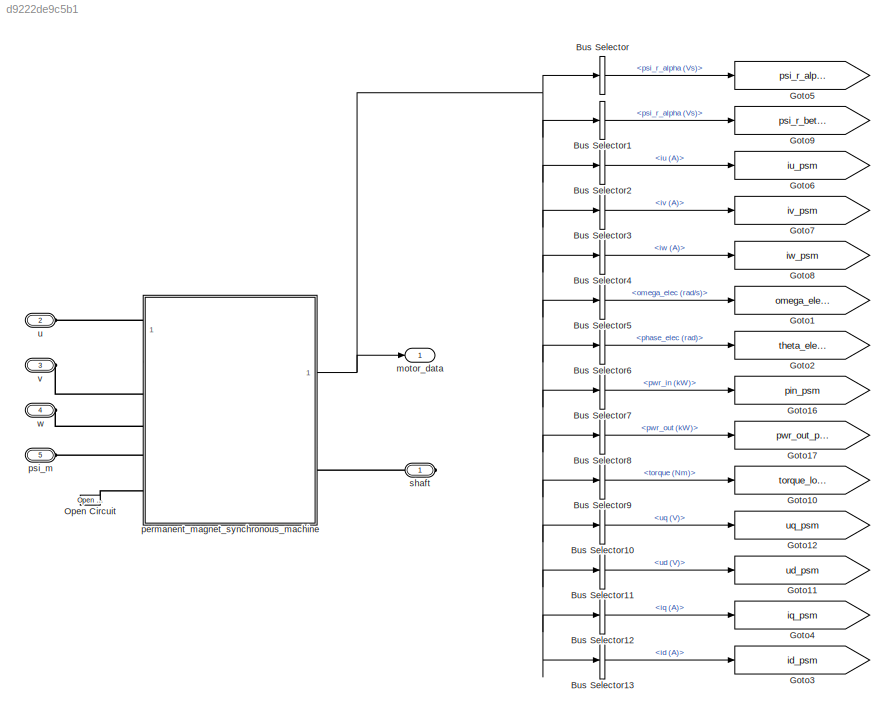
MODEL slx_d9222de9c5b1
KIND library
CONFIG AbsTol = auto
CONFIG EnableMultiTasking = off
CONFIG FixedStep = auto
CONFIG MaxStep = auto
CONFIG MinStep = auto
CONFIG RelTol = 1e-3
CONFIG SampleTimeConstraint = Unconstrained
CONFIG SolverName = VariableStepAuto
CONFIG StartTime = 0.0
CONFIG StopTime = 10.0
BLOCK [BusSelector] Bus Selector
  OutputSignals = psi_r_alpha (Vs)
BLOCK [BusSelector] Bus Selector1
  OutputSignals = psi_r_alpha (Vs)
BLOCK [BusSelector] Bus Selector10
  OutputSignals = uq (V)
BLOCK [BusSelector] Bus Selector11
  OutputSignals = ud (V)
BLOCK [BusSelector] Bus Selector12
  OutputSignals = iq (A)
BLOCK [BusSelector] Bus Selector13
  OutputSignals = id (A)
BLOCK [BusSelector] Bus Selector2
  OutputSignals = iu (A)
BLOCK [BusSelector] Bus Selector3
  OutputSignals = iv (A)
BLOCK [BusSelector] Bus Selector4
  OutputSignals = iw (A)
BLOCK [BusSelector] Bus Selector5
  OutputSignals = omega_elec (rad/s)
BLOCK [BusSelector] Bus Selector6
  OutputSignals = phase_elec (rad)
BLOCK [BusSelector] Bus Selector7
  OutputSignals = pwr_in (kW)
BLOCK [BusSelector] Bus Selector8
  OutputSignals = pwr_out (kW)
BLOCK [BusSelector] Bus Selector9
  OutputSignals = torque (Nm)
BLOCK [Goto] Goto1
  GotoTag = omega_elec_psm
  TagVisibility = global
BLOCK [Goto] Goto10
  GotoTag = torque_load_psm
  TagVisibility = global
BLOCK [Goto] Goto11
  GotoTag = ud_psm
  TagVisibility = global
BLOCK [Goto] Goto12
  GotoTag = uq_psm
  TagVisibility = global
BLOCK [Goto] Goto16
  GotoTag = pin_psm
  TagVisibility = global
BLOCK [Goto] Goto17
  GotoTag = pwr_out_psm
  TagVisibility = global
BLOCK [Goto] Goto2
  GotoTag = theta_elec_psm
  TagVisibility = global
BLOCK [Goto] Goto3
  GotoTag = id_psm
  TagVisibility = global
BLOCK [Goto] Goto4
  GotoTag = iq_psm
  TagVisibility = global
BLOCK [Goto] Goto5
  GotoTag = psi_r_alpha_psm
  TagVisibility = global
BLOCK [Goto] Goto6
  GotoTag = iu_psm
  TagVisibility = global
BLOCK [Goto] Goto7
  GotoTag = iv_psm
  TagVisibility = global
BLOCK [Goto] Goto8
  GotoTag = iw_psm
  TagVisibility = global
BLOCK [Goto] Goto9
  GotoTag = psi_r_beta_psm
  TagVisibility = global
BLOCK [Reference] Open Circuit  REF=fl_lib/Electrical/Electrical Elements/Open Circuit
  SourceBlock = fl_lib/Electrical/Electrical Elements/Open Circuit
  SourceType = Open Circuit
BLOCK [Outport] motor_data
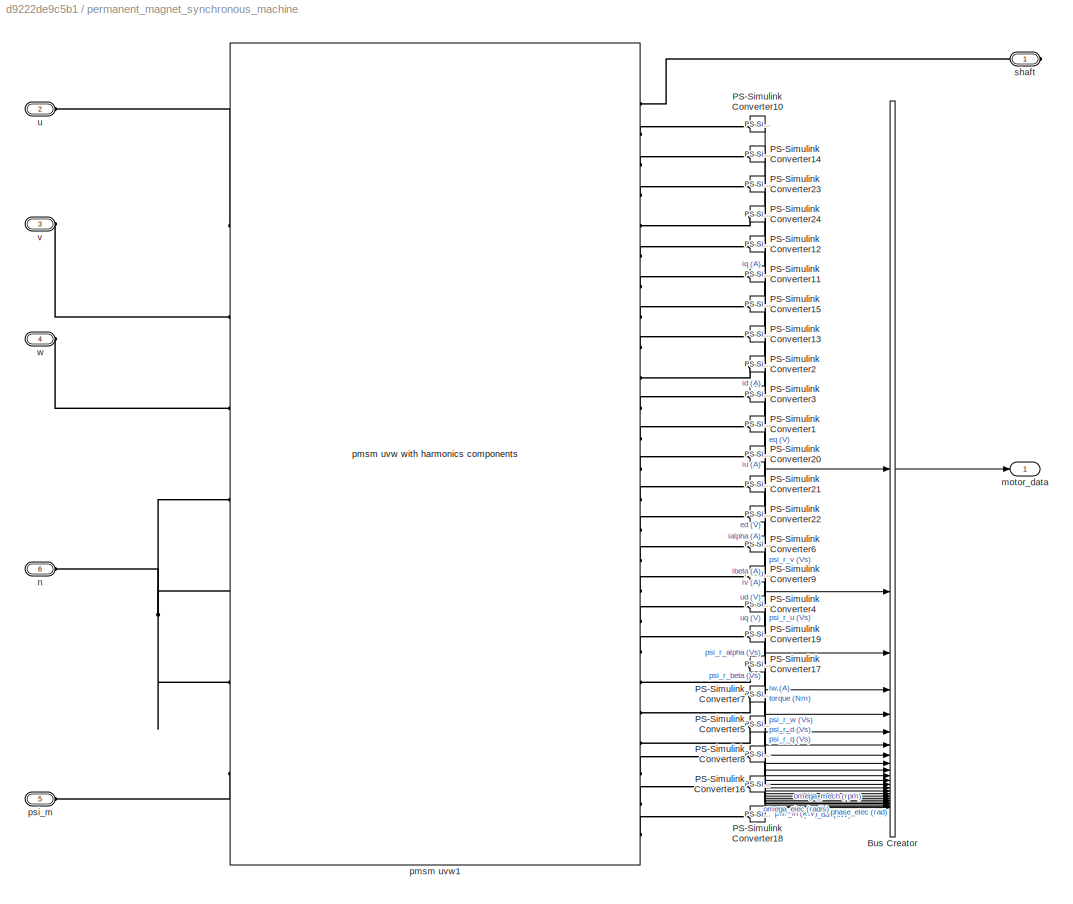
BLOCK [SubSystem] permanent_magnet_synchronous_machine
BLOCK [BusCreator] permanent_magnet_synchronous_machine/Bus Creator
  DisplayOption = bar
  InheritFromInputs = on
  Inputs = 24
BLOCK [Reference] permanent_magnet_synchronous_machine/PS-Simulink Converter1  REF=nesl_utility/PS-Simulink
Converter
  NameLocation = top
  SourceBlock = nesl_utility/PS-Simulink\nConverter
  SourceType = PS-Simulink\nConverter
BLOCK [Reference] permanent_magnet_synchronous_machine/PS-Simulink Converter10  REF=nesl_utility/PS-Simulink
Converter
  SourceBlock = nesl_utility/PS-Simulink\nConverter
  SourceType = PS-Simulink\nConverter
BLOCK [Reference] permanent_magnet_synchronous_machine/PS-Simulink Converter11  REF=nesl_utility/PS-Simulink
Converter
  SourceBlock = nesl_utility/PS-Simulink\nConverter
  SourceType = PS-Simulink\nConverter
BLOCK [Reference] permanent_magnet_synchronous_machine/PS-Simulink Converter12  REF=nesl_utility/PS-Simulink
Converter
  SourceBlock = nesl_utility/PS-Simulink\nConverter
  SourceType = PS-Simulink\nConverter
BLOCK [Reference] permanent_magnet_synchronous_machine/PS-Simulink Converter13  REF=nesl_utility/PS-Simulink
Converter
  SourceBlock = nesl_utility/PS-Simulink\nConverter
  SourceType = PS-Simulink\nConverter
BLOCK [Reference] permanent_magnet_synchronous_machine/PS-Simulink Converter14  REF=nesl_utility/PS-Simulink
Converter
  SourceBlock = nesl_utility/PS-Simulink\nConverter
  SourceType = PS-Simulink\nConverter
BLOCK [Reference] permanent_magnet_synchronous_machine/PS-Simulink Converter15  REF=nesl_utility/PS-Simulink
Converter
  SourceBlock = nesl_utility/PS-Simulink\nConverter
  SourceType = PS-Simulink\nConverter
BLOCK [Reference] permanent_magnet_synchronous_machine/PS-Simulink Converter16  REF=nesl_utility/PS-Simulink
Converter
  NameLocation = top
  SourceBlock = nesl_utility/PS-Simulink\nConverter
  SourceType = PS-Simulink\nConverter
BLOCK [Reference] permanent_magnet_synchronous_machine/PS-Simulink Converter17  REF=nesl_utility/PS-Simulink
Converter
  SourceBlock = nesl_utility/PS-Simulink\nConverter
  SourceType = PS-Simulink\nConverter
BLOCK [Reference] permanent_magnet_synchronous_machine/PS-Simulink Converter18  REF=nesl_utility/PS-Simulink
Converter
  NameLocation = top
  SourceBlock = nesl_utility/PS-Simulink\nConverter
  SourceType = PS-Simulink\nConverter
BLOCK [Reference] permanent_magnet_synchronous_machine/PS-Simulink Converter19  REF=nesl_utility/PS-Simulink
Converter
  NameLocation = top
  SourceBlock = nesl_utility/PS-Simulink\nConverter
  SourceType = PS-Simulink\nConverter
BLOCK [Reference] permanent_magnet_synchronous_machine/PS-Simulink Converter2  REF=nesl_utility/PS-Simulink
Converter
  SourceBlock = nesl_utility/PS-Simulink\nConverter
  SourceType = PS-Simulink\nConverter
BLOCK [Reference] permanent_magnet_synchronous_machine/PS-Simulink Converter20  REF=nesl_utility/PS-Simulink
Converter
  NameLocation = top
  SourceBlock = nesl_utility/PS-Simulink\nConverter
  SourceType = PS-Simulink\nConverter
BLOCK [Reference] permanent_magnet_synchronous_machine/PS-Simulink Converter21  REF=nesl_utility/PS-Simulink
Converter
  NameLocation = top
  SourceBlock = nesl_utility/PS-Simulink\nConverter
  SourceType = PS-Simulink\nConverter
BLOCK [Reference] permanent_magnet_synchronous_machine/PS-Simulink Converter22  REF=nesl_utility/PS-Simulink
Converter
  NameLocation = top
  SourceBlock = nesl_utility/PS-Simulink\nConverter
  SourceType = PS-Simulink\nConverter
BLOCK [Reference] permanent_magnet_synchronous_machine/PS-Simulink Converter23  REF=nesl_utility/PS-Simulink
Converter
  SourceBlock = nesl_utility/PS-Simulink\nConverter
  SourceType = PS-Simulink\nConverter
BLOCK [Reference] permanent_magnet_synchronous_machine/PS-Simulink Converter24  REF=nesl_utility/PS-Simulink
Converter
  SourceBlock = nesl_utility/PS-Simulink\nConverter
  SourceType = PS-Simulink\nConverter
BLOCK [Reference] permanent_magnet_synchronous_machine/PS-Simulink Converter3  REF=nesl_utility/PS-Simulink
Converter
  NameLocation = top
  SourceBlock = nesl_utility/PS-Simulink\nConverter
  SourceType = PS-Simulink\nConverter
BLOCK [Reference] permanent_magnet_synchronous_machine/PS-Simulink Converter4  REF=nesl_utility/PS-Simulink
Converter
  NameLocation = top
  SourceBlock = nesl_utility/PS-Simulink\nConverter
  SourceType = PS-Simulink\nConverter
BLOCK [Reference] permanent_magnet_synchronous_machine/PS-Simulink Converter5  REF=nesl_utility/PS-Simulink
Converter
  SourceBlock = nesl_utility/PS-Simulink\nConverter
  SourceType = PS-Simulink\nConverter
BLOCK [Reference] permanent_magnet_synchronous_machine/PS-Simulink Converter6  REF=nesl_utility/PS-Simulink
Converter
  NameLocation = top
  SourceBlock = nesl_utility/PS-Simulink\nConverter
  SourceType = PS-Simulink\nConverter
BLOCK [Reference] permanent_magnet_synchronous_machine/PS-Simulink Converter7  REF=nesl_utility/PS-Simulink
Converter
  NameLocation = top
  SourceBlock = nesl_utility/PS-Simulink\nConverter
  SourceType = PS-Simulink\nConverter
BLOCK [Reference] permanent_magnet_synchronous_machine/PS-Simulink Converter8  REF=nesl_utility/PS-Simulink
Converter
  NameLocation = top
  SourceBlock = nesl_utility/PS-Simulink\nConverter
  SourceType = PS-Simulink\nConverter
BLOCK [Reference] permanent_magnet_synchronous_machine/PS-Simulink Converter9  REF=nesl_utility/PS-Simulink
Converter
  NameLocation = top
  SourceBlock = nesl_utility/PS-Simulink\nConverter
  SourceType = PS-Simulink\nConverter
BLOCK [Outport] permanent_magnet_synchronous_machine/motor_data
BLOCK [PMIOPort] permanent_magnet_synchronous_machine/n
  Port = 6
  Side = Left
BLOCK [Reference] permanent_magnet_synchronous_machine/pmsm uvw1  REF=pmsm_uvw_with_harmonics_lib/pmsm uvw with
harmonics components
  SourceBlock = pmsm_uvw_with_harmonics_lib/pmsm uvw with\nharmonics components
  SourceType = pmsm uvw with\nharmonics components
BLOCK [PMIOPort] permanent_magnet_synchronous_machine/psi_m
  Port = 5
  Side = Left
BLOCK [PMIOPort] permanent_magnet_synchronous_machine/shaft
  Side = Right
BLOCK [PMIOPort] permanent_magnet_synchronous_machine/u
  Port = 2
  Side = Left
BLOCK [PMIOPort] permanent_magnet_synchronous_machine/v
  Port = 3
  Side = Left
BLOCK [PMIOPort] permanent_magnet_synchronous_machine/w
  Port = 4
  Side = Left
BLOCK [PMIOPort] psi_m
  Port = 5
  Side = Left
BLOCK [PMIOPort] shaft
  Side = Right
BLOCK [PMIOPort] u
  Port = 2
  Side = Left
BLOCK [PMIOPort] v
  Port = 3
  Side = Left
BLOCK [PMIOPort] w
  Port = 4
  Side = Left
LINE Bus Selector10:1 -> Goto12:1
LINE Bus Selector11:1 -> Goto11:1
LINE Bus Selector12:1 -> Goto4:1
LINE Bus Selector13:1 -> Goto3:1
LINE Bus Selector1:1 -> Goto9:1
LINE Bus Selector2:1 -> Goto6:1
LINE Bus Selector3:1 -> Goto7:1
LINE Bus Selector4:1 -> Goto8:1
LINE Bus Selector5:1 -> Goto1:1
LINE Bus Selector6:1 -> Goto2:1
LINE Bus Selector7:1 -> Goto16:1
LINE Bus Selector8:1 -> Goto17:1
LINE Bus Selector9:1 -> Goto10:1
LINE Bus Selector:1 -> Goto5:1
LINE permanent_magnet_synchronous_machine/Bus Creator:1 -> permanent_magnet_synchronous_machine/motor_data:1
LINE permanent_magnet_synchronous_machine/PS-Simulink Converter10:1 -> permanent_magnet_synchronous_machine/Bus Creator:1
LINE permanent_magnet_synchronous_machine/PS-Simulink Converter11:1 -> permanent_magnet_synchronous_machine/Bus Creator:6
LINE permanent_magnet_synchronous_machine/PS-Simulink Converter12:1 -> permanent_magnet_synchronous_machine/Bus Creator:5
LINE permanent_magnet_synchronous_machine/PS-Simulink Converter13:1 -> permanent_magnet_synchronous_machine/Bus Creator:8
LINE permanent_magnet_synchronous_machine/PS-Simulink Converter14:1 -> permanent_magnet_synchronous_machine/Bus Creator:2
LINE permanent_magnet_synchronous_machine/PS-Simulink Converter15:1 -> permanent_magnet_synchronous_machine/Bus Creator:7
LINE permanent_magnet_synchronous_machine/PS-Simulink Converter16:1 -> permanent_magnet_synchronous_machine/Bus Creator:23
LINE permanent_magnet_synchronous_machine/PS-Simulink Converter17:1 -> permanent_magnet_synchronous_machine/Bus Creator:19
LINE permanent_magnet_synchronous_machine/PS-Simulink Converter18:1 -> permanent_magnet_synchronous_machine/Bus Creator:24
LINE permanent_magnet_synchronous_machine/PS-Simulink Converter19:1 -> permanent_magnet_synchronous_machine/Bus Creator:18
LINE permanent_magnet_synchronous_machine/PS-Simulink Converter1:1 -> permanent_magnet_synchronous_machine/Bus Creator:11
LINE permanent_magnet_synchronous_machine/PS-Simulink Converter20:1 -> permanent_magnet_synchronous_machine/Bus Creator:12
LINE permanent_magnet_synchronous_machine/PS-Simulink Converter21:1 -> permanent_magnet_synchronous_machine/Bus Creator:13
LINE permanent_magnet_synchronous_machine/PS-Simulink Converter22:1 -> permanent_magnet_synchronous_machine/Bus Creator:14
LINE permanent_magnet_synchronous_machine/PS-Simulink Converter23:1 -> permanent_magnet_synchronous_machine/Bus Creator:3
LINE permanent_magnet_synchronous_machine/PS-Simulink Converter24:1 -> permanent_magnet_synchronous_machine/Bus Creator:4
LINE permanent_magnet_synchronous_machine/PS-Simulink Converter2:1 -> permanent_magnet_synchronous_machine/Bus Creator:9
LINE permanent_magnet_synchronous_machine/PS-Simulink Converter3:1 -> permanent_magnet_synchronous_machine/Bus Creator:10
LINE permanent_magnet_synchronous_machine/PS-Simulink Converter4:1 -> permanent_magnet_synchronous_machine/Bus Creator:17
LINE permanent_magnet_synchronous_machine/PS-Simulink Converter5:1 -> permanent_magnet_synchronous_machine/Bus Creator:21
LINE permanent_magnet_synchronous_machine/PS-Simulink Converter6:1 -> permanent_magnet_synchronous_machine/Bus Creator:15
LINE permanent_magnet_synchronous_machine/PS-Simulink Converter7:1 -> permanent_magnet_synchronous_machine/Bus Creator:20
LINE permanent_magnet_synchronous_machine/PS-Simulink Converter8:1 -> permanent_magnet_synchronous_machine/Bus Creator:22
LINE permanent_magnet_synchronous_machine/PS-Simulink Converter9:1 -> permanent_magnet_synchronous_machine/Bus Creator:16
NET permanent_magnet_synchronous_machine:1 -> Bus Selector10:1, Bus Selector11:1, Bus Selector12:1, Bus Selector13:1, Bus Selector1:1, Bus Selector2:1, Bus Selector3:1, Bus Selector4:1, Bus Selector5:1, Bus Selector6:1, Bus Selector7:1, Bus Selector8:1, Bus Selector9:1, Bus Selector:1, motor_data:1
PLINE Open Circuit:LConn1 -- permanent_magnet_synchronous_machine:LConn5
PLINE permanent_magnet_synchronous_machine/PS-Simulink Converter10:LConn1 -- permanent_magnet_synchronous_machine/pmsm uvw1:RConn2
PLINE permanent_magnet_synchronous_machine/PS-Simulink Converter11:LConn1 -- permanent_magnet_synchronous_machine/pmsm uvw1:RConn7
PLINE permanent_magnet_synchronous_machine/PS-Simulink Converter12:LConn1 -- permanent_magnet_synchronous_machine/pmsm uvw1:RConn6
PLINE permanent_magnet_synchronous_machine/PS-Simulink Converter13:LConn1 -- permanent_magnet_synchronous_machine/pmsm uvw1:RConn9
PLINE permanent_magnet_synchronous_machine/PS-Simulink Converter14:LConn1 -- permanent_magnet_synchronous_machine/pmsm uvw1:RConn3
PLINE permanent_magnet_synchronous_machine/PS-Simulink Converter15:LConn1 -- permanent_magnet_synchronous_machine/pmsm uvw1:RConn8
PLINE permanent_magnet_synchronous_machine/PS-Simulink Converter16:LConn1 -- permanent_magnet_synchronous_machine/pmsm uvw1:RConn24
PLINE permanent_magnet_synchronous_machine/PS-Simulink Converter17:LConn1 -- permanent_magnet_synchronous_machine/pmsm uvw1:RConn20
PLINE permanent_magnet_synchronous_machine/PS-Simulink Converter18:LConn1 -- permanent_magnet_synchronous_machine/pmsm uvw1:RConn25
PLINE permanent_magnet_synchronous_machine/PS-Simulink Converter19:LConn1 -- permanent_magnet_synchronous_machine/pmsm uvw1:RConn19
PLINE permanent_magnet_synchronous_machine/PS-Simulink Converter1:LConn1 -- permanent_magnet_synchronous_machine/pmsm uvw1:RConn12
PLINE permanent_magnet_synchronous_machine/PS-Simulink Converter20:LConn1 -- permanent_magnet_synchronous_machine/pmsm uvw1:RConn13
PLINE permanent_magnet_synchronous_machine/PS-Simulink Converter21:LConn1 -- permanent_magnet_synchronous_machine/pmsm uvw1:RConn14
PLINE permanent_magnet_synchronous_machine/PS-Simulink Converter22:LConn1 -- permanent_magnet_synchronous_machine/pmsm uvw1:RConn15
PLINE permanent_magnet_synchronous_machine/PS-Simulink Converter23:LConn1 -- permanent_magnet_synchronous_machine/pmsm uvw1:RConn4
PLINE permanent_magnet_synchronous_machine/PS-Simulink Converter24:LConn1 -- permanent_magnet_synchronous_machine/pmsm uvw1:RConn5
PLINE permanent_magnet_synchronous_machine/PS-Simulink Converter2:LConn1 -- permanent_magnet_synchronous_machine/pmsm uvw1:RConn10
PLINE permanent_magnet_synchronous_machine/PS-Simulink Converter3:LConn1 -- permanent_magnet_synchronous_machine/pmsm uvw1:RConn11
PLINE permanent_magnet_synchronous_machine/PS-Simulink Converter4:LConn1 -- permanent_magnet_synchronous_machine/pmsm uvw1:RConn18
PLINE permanent_magnet_synchronous_machine/PS-Simulink Converter5:LConn1 -- permanent_magnet_synchronous_machine/pmsm uvw1:RConn22
PLINE permanent_magnet_synchronous_machine/PS-Simulink Converter6:LConn1 -- permanent_magnet_synchronous_machine/pmsm uvw1:RConn16
PLINE permanent_magnet_synchronous_machine/PS-Simulink Converter7:LConn1 -- permanent_magnet_synchronous_machine/pmsm uvw1:RConn21
PLINE permanent_magnet_synchronous_machine/PS-Simulink Converter8:LConn1 -- permanent_magnet_synchronous_machine/pmsm uvw1:RConn23
PLINE permanent_magnet_synchronous_machine/PS-Simulink Converter9:LConn1 -- permanent_magnet_synchronous_machine/pmsm uvw1:RConn17
PNET net1: permanent_magnet_synchronous_machine/n:RConn1 -- permanent_magnet_synchronous_machine/pmsm uvw1:LConn4 -- permanent_magnet_synchronous_machine/pmsm uvw1:LConn5 -- permanent_magnet_synchronous_machine/pmsm uvw1:LConn6
PLINE permanent_magnet_synchronous_machine/pmsm uvw1:LConn1 -- permanent_magnet_synchronous_machine/u:RConn1
PLINE permanent_magnet_synchronous_machine/pmsm uvw1:LConn2 -- permanent_magnet_synchronous_machine/v:RConn1
PLINE permanent_magnet_synchronous_machine/pmsm uvw1:LConn3 -- permanent_magnet_synchronous_machine/w:RConn1
PLINE permanent_magnet_synchronous_machine/pmsm uvw1:LConn7 -- permanent_magnet_synchronous_machine/psi_m:RConn1
PLINE permanent_magnet_synchronous_machine/pmsm uvw1:RConn1 -- permanent_magnet_synchronous_machine/shaft:RConn1
PLINE permanent_magnet_synchronous_machine:LConn1 -- u:RConn1
PLINE permanent_magnet_synchronous_machine:LConn2 -- v:RConn1
PLINE permanent_magnet_synchronous_machine:LConn3 -- w:RConn1
PLINE permanent_magnet_synchronous_machine:LConn4 -- psi_m:RConn1
PLINE permanent_magnet_synchronous_machine:RConn1 -- shaft:RConn1
note: NET lines group one-source signal fan-out (src -> all destinations, sorted); 1:1 wires keep LINE; PNET lines group multi-terminal physical nets as a canonical sorted terminal list (undirected conserving connections); 2-terminal nets keep the pairwise PLINE form
